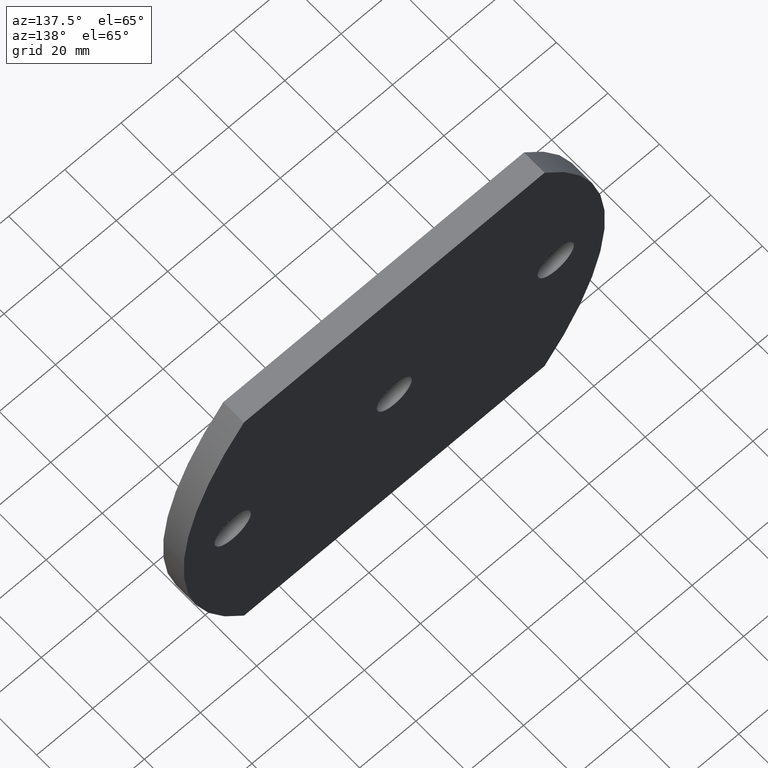
[diagram: clean part render]
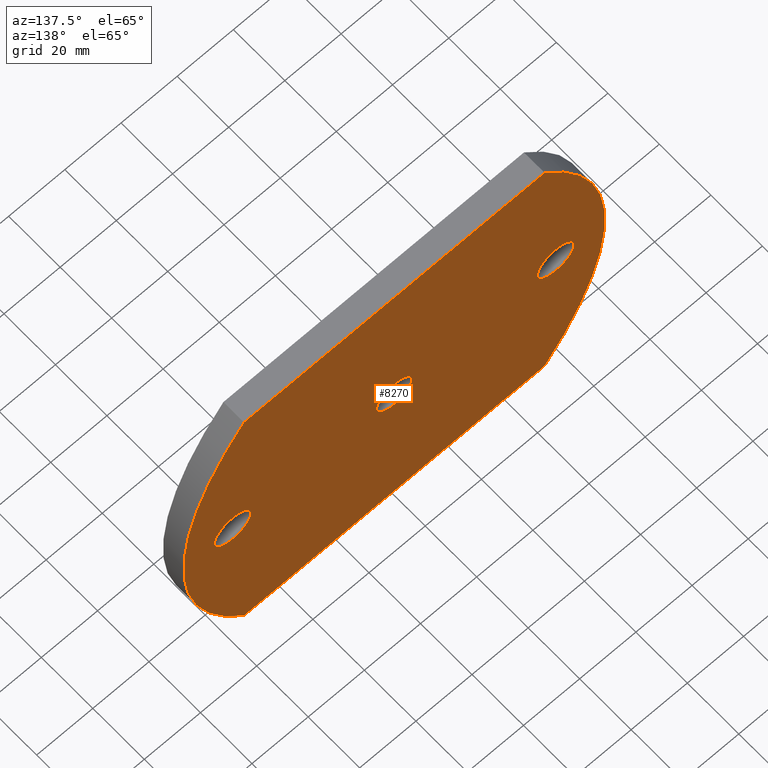
[diagram: same view with one face highlighted and labeled with its STEP entity id]
A machine part, auxiliary view. The second image highlights one B-rep face of the part: STEP entity #8270.
In plain terms, the highlighted planar face has unit normal (0, -1, 0).
Its self-contained STEP definition (entity closure, byte-faithful):
#54 = DIRECTION ( 'NONE',  ( 0.0000000000000000000, 0.0000000000000000000, -1.000000000000000000 ) ) ;
#209 = CIRCLE ( 'NONE', #7891, 6.250000000000000000 ) ;
#250 = CARTESIAN_POINT ( 'NONE',  ( -57.50000000000000000, 8.000000000000000000, 0.0000000000000000000 ) ) ;
#490 = CIRCLE ( 'NONE', #7199, 6.500000000000000900 ) ;
#564 = CARTESIAN_POINT ( 'NONE',  ( 57.50000000000000000, 8.000000000000000000, 0.0000000000000000000 ) ) ;
#606 = ORIENTED_EDGE ( 'NONE', *, *, #4762, .F. ) ;
#1040 = DIRECTION ( 'NONE',  ( 0.0000000000000000000, 1.000000000000000000, 0.0000000000000000000 ) ) ;
#1081 = VERTEX_POINT ( 'NONE', #10102 ) ;
#1143 = VERTEX_POINT ( 'NONE', #6985 ) ;
#1154 = AXIS2_PLACEMENT_3D ( 'NONE', #564, #10159, #9404 ) ;
#1159 = LINE ( 'NONE', #4425, #6917 ) ;
#1180 = CARTESIAN_POINT ( 'NONE',  ( -53.49999999999999300, 8.000000000000000000, -60.00000000000000000 ) ) ;
#1280 = EDGE_CURVE ( 'NONE', #1143, #2073, #9950, .T. ) ;
#1292 = VERTEX_POINT ( 'NONE', #3235 ) ;
#1559 = DIRECTION ( 'NONE',  ( 0.0000000000000000000, -0.0000000000000000000, -1.000000000000000000 ) ) ;
#1606 = VERTEX_POINT ( 'NONE', #7852 ) ;
#1887 = ORIENTED_EDGE ( 'NONE', *, *, #1280, .F. ) ;
#2063 = ORIENTED_EDGE ( 'NONE', *, *, #6330, .F. ) ;
#2073 = VERTEX_POINT ( 'NONE', #10099 ) ;
#2079 = CARTESIAN_POINT ( 'NONE',  ( 57.50000000000000000, 8.000000000000000000, 0.0000000000000000000 ) ) ;
#2109 = FACE_BOUND ( 'NONE', #2116, .T. ) ;
#2116 = EDGE_LOOP ( 'NONE', ( #4946, #2063 ) ) ;
#2357 = CARTESIAN_POINT ( 'NONE',  ( -19.47093023255816400, 8.000000000000000000, 0.0000000000000000000 ) ) ;
#2471 = PLANE ( 'NONE',  #8613 ) ;
#2614 = ORIENTED_EDGE ( 'NONE', *, *, #9715, .T. ) ;
#2653 = EDGE_CURVE ( 'NONE', #1081, #2768, #1159, .T. ) ;
#2676 = DIRECTION ( 'NONE',  ( 0.0000000000000000000, 0.0000000000000000000, 1.000000000000000000 ) ) ;
#2690 = DIRECTION ( 'NONE',  ( 0.0000000000000000000, 0.0000000000000000000, 1.000000000000000000 ) ) ;
#2716 = DIRECTION ( 'NONE',  ( 0.0000000000000000000, 1.000000000000000000, 0.0000000000000000000 ) ) ;
#2768 = VERTEX_POINT ( 'NONE', #3091 ) ;
#2770 = CIRCLE ( 'NONE', #9075, 94.47093023255810400 ) ;
#2873 = AXIS2_PLACEMENT_3D ( 'NONE', #2079, #5854, #2676 ) ;
#2916 = DIRECTION ( 'NONE',  ( 1.000000000000000000, 0.0000000000000000000, 0.0000000000000000000 ) ) ;
#3091 = CARTESIAN_POINT ( 'NONE',  ( 53.50000000000000700, 8.000000000000000000, 60.00000000000000000 ) ) ;
#3235 = CARTESIAN_POINT ( 'NONE',  ( 57.50000000000000000, 8.000000000000000000, 6.499999999999994700 ) ) ;
#3241 = CARTESIAN_POINT ( 'NONE',  ( -19.47093023255816400, 8.000000000000000000, 0.0000000000000000000 ) ) ;
#3540 = CIRCLE ( 'NONE', #7605, 6.500000000000000900 ) ;
#3684 = VERTEX_POINT ( 'NONE', #4941 ) ;
#3854 = ORIENTED_EDGE ( 'NONE', *, *, #2653, .T. ) ;
#3911 = DIRECTION ( 'NONE',  ( 0.0000000000000000000, 1.000000000000000000, 0.0000000000000000000 ) ) ;
#4064 = DIRECTION ( 'NONE',  ( 0.0000000000000000000, 0.0000000000000000000, 1.000000000000000000 ) ) ;
#4425 = CARTESIAN_POINT ( 'NONE',  ( -53.49999999999999300, 8.000000000000000000, 60.00000000000000000 ) ) ;
#4762 = EDGE_CURVE ( 'NONE', #1292, #5324, #7272, .T. ) ;
#4801 = CARTESIAN_POINT ( 'NONE',  ( 19.47093023255811100, 8.000000000000000000, 0.0000000000000000000 ) ) ;
#4912 = ORIENTED_EDGE ( 'NONE', *, *, #9137, .T. ) ;
#4941 = CARTESIAN_POINT ( 'NONE',  ( -57.50000000000000000, 8.000000000000000000, 6.500000000000000900 ) ) ;
#4946 = ORIENTED_EDGE ( 'NONE', *, *, #5944, .F. ) ;
#5324 = VERTEX_POINT ( 'NONE', #8416 ) ;
#5474 = CIRCLE ( 'NONE', #2873, 6.499999999999994700 ) ;
#5498 = DIRECTION ( 'NONE',  ( 0.0000000000000000000, 0.0000000000000000000, 1.000000000000000000 ) ) ;
#5515 = DIRECTION ( 'NONE',  ( 0.0000000000000000000, 1.000000000000000000, 0.0000000000000000000 ) ) ;
#5730 = EDGE_CURVE ( 'NONE', #9815, #1081, #2770, .T. ) ;
#5854 = DIRECTION ( 'NONE',  ( 0.0000000000000000000, 1.000000000000000000, 0.0000000000000000000 ) ) ;
#5863 = DIRECTION ( 'NONE',  ( -1.000000000000000000, -0.0000000000000000000, -0.0000000000000000000 ) ) ;
#5894 = ORIENTED_EDGE ( 'NONE', *, *, #5730, .T. ) ;
#5906 = CARTESIAN_POINT ( 'NONE',  ( -57.50000000000000000, 8.000000000000000000, -6.500000000000000900 ) ) ;
#5944 = EDGE_CURVE ( 'NONE', #3684, #9688, #490, .T. ) ;
#6330 = EDGE_CURVE ( 'NONE', #9688, #3684, #3540, .T. ) ;
#6366 = CARTESIAN_POINT ( 'NONE',  ( 0.0000000000000000000, 8.000000000000000000, 0.0000000000000000000 ) ) ;
#6656 = DIRECTION ( 'NONE',  ( 0.0000000000000000000, 0.0000000000000000000, 1.000000000000000000 ) ) ;
#6868 = EDGE_LOOP ( 'NONE', ( #4912, #2614, #5894, #3854 ) ) ;
#6917 = VECTOR ( 'NONE', #2916, 1000.000000000000000 ) ;
#6954 = EDGE_LOOP ( 'NONE', ( #606, #9486 ) ) ;
#6985 = CARTESIAN_POINT ( 'NONE',  ( 7.654042494670957600E-016, 8.000000000000000000, -6.250000000000000000 ) ) ;
#7199 = AXIS2_PLACEMENT_3D ( 'NONE', #250, #1040, #6656 ) ;
#7272 = CIRCLE ( 'NONE', #1154, 6.499999999999994700 ) ;
#7338 = DIRECTION ( 'NONE',  ( 0.0000000000000000000, 0.0000000000000000000, 1.000000000000000000 ) ) ;
#7498 = CARTESIAN_POINT ( 'NONE',  ( -57.50000000000000000, 8.000000000000000000, 0.0000000000000000000 ) ) ;
#7605 = AXIS2_PLACEMENT_3D ( 'NONE', #7498, #2716, #7338 ) ;
#7852 = CARTESIAN_POINT ( 'NONE',  ( 53.50000000000000700, 8.000000000000000000, -60.00000000000000000 ) ) ;
#7891 = AXIS2_PLACEMENT_3D ( 'NONE', #8319, #8995, #2690 ) ;
#7989 = EDGE_CURVE ( 'NONE', #2073, #1143, #209, .T. ) ;
#8118 = FACE_BOUND ( 'NONE', #8380, .T. ) ;
#8244 = FACE_OUTER_BOUND ( 'NONE', #6868, .T. ) ;
#8270 = ADVANCED_FACE ( 'NONE', ( #9732, #2109, #8118, #8244 ), #2471, .F. ) ;
#8319 = CARTESIAN_POINT ( 'NONE',  ( 0.0000000000000000000, 8.000000000000000000, 0.0000000000000000000 ) ) ;
#8380 = EDGE_LOOP ( 'NONE', ( #8522, #1887 ) ) ;
#8391 = EDGE_CURVE ( 'NONE', #5324, #1292, #5474, .T. ) ;
#8416 = CARTESIAN_POINT ( 'NONE',  ( 57.50000000000000000, 8.000000000000000000, -6.499999999999994700 ) ) ;
#8522 = ORIENTED_EDGE ( 'NONE', *, *, #7989, .F. ) ;
#8613 = AXIS2_PLACEMENT_3D ( 'NONE', #3241, #9664, #1559 ) ;
#8995 = DIRECTION ( 'NONE',  ( 0.0000000000000000000, 1.000000000000000000, 0.0000000000000000000 ) ) ;
#9075 = AXIS2_PLACEMENT_3D ( 'NONE', #4801, #5515, #4064 ) ;
#9137 = EDGE_CURVE ( 'NONE', #2768, #1606, #10088, .T. ) ;
#9331 = VECTOR ( 'NONE', #5863, 1000.000000000000000 ) ;
#9404 = DIRECTION ( 'NONE',  ( 0.0000000000000000000, 0.0000000000000000000, 1.000000000000000000 ) ) ;
#9486 = ORIENTED_EDGE ( 'NONE', *, *, #8391, .F. ) ;
#9490 = AXIS2_PLACEMENT_3D ( 'NONE', #2357, #9659, #54 ) ;
#9659 = DIRECTION ( 'NONE',  ( 0.0000000000000000000, 1.000000000000000000, -0.0000000000000000000 ) ) ;
#9664 = DIRECTION ( 'NONE',  ( 0.0000000000000000000, -1.000000000000000000, 0.0000000000000000000 ) ) ;
#9688 = VERTEX_POINT ( 'NONE', #5906 ) ;
#9715 = EDGE_CURVE ( 'NONE', #1606, #9815, #10202, .T. ) ;
#9730 = AXIS2_PLACEMENT_3D ( 'NONE', #6366, #3911, #5498 ) ;
#9732 = FACE_BOUND ( 'NONE', #6954, .T. ) ;
#9815 = VERTEX_POINT ( 'NONE', #9870 ) ;
#9870 = CARTESIAN_POINT ( 'NONE',  ( -53.49999999999995000, 8.000000000000000000, -60.00000000000004300 ) ) ;
#9950 = CIRCLE ( 'NONE', #9730, 6.250000000000000000 ) ;
#10088 = CIRCLE ( 'NONE', #9490, 94.47093023255816000 ) ;
#10099 = CARTESIAN_POINT ( 'NONE',  ( 0.0000000000000000000, 8.000000000000000000, 6.250000000000000000 ) ) ;
#10102 = CARTESIAN_POINT ( 'NONE',  ( -53.49999999999999300, 8.000000000000000000, 60.00000000000000000 ) ) ;
#10159 = DIRECTION ( 'NONE',  ( 0.0000000000000000000, 1.000000000000000000, 0.0000000000000000000 ) ) ;
#10202 = LINE ( 'NONE', #1180, #9331 ) ;